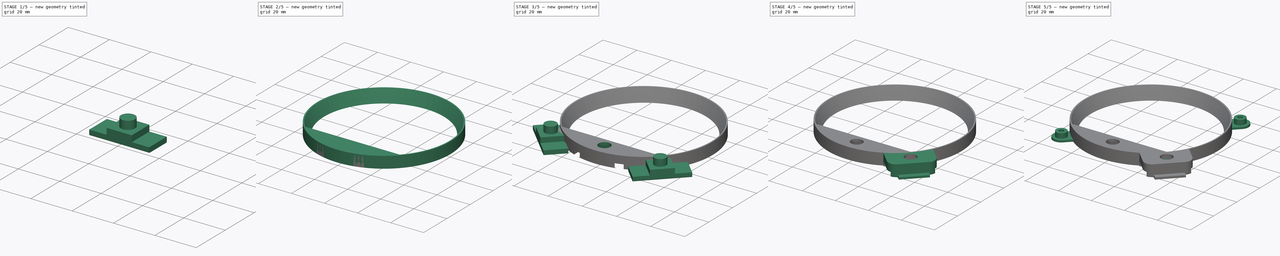
[diagram: build sequence overview — one tinted view per stage of 5, left to right]
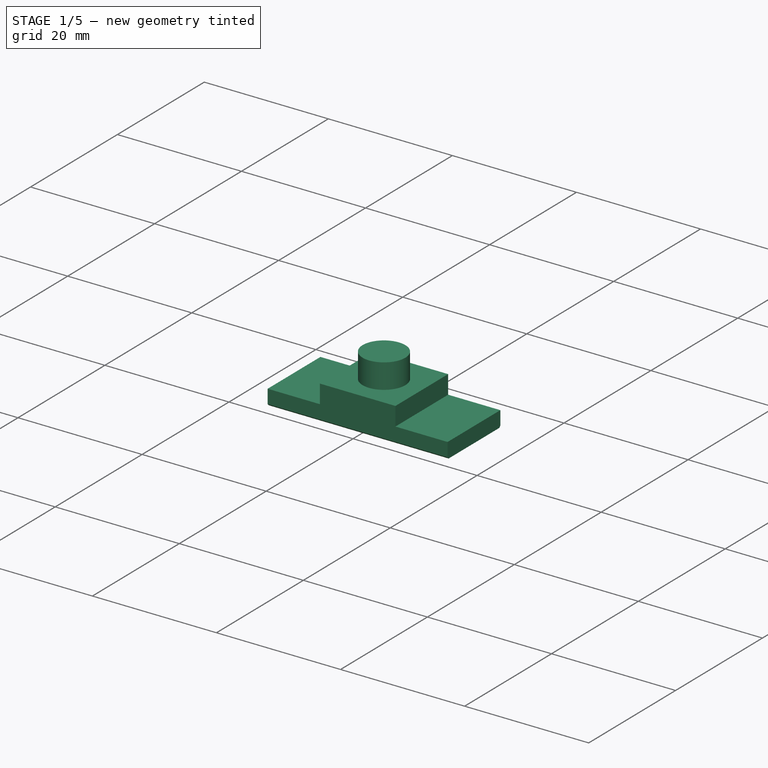
[diagram: stage 1 of 5 — iso view after this stage's code; geometry added in this stage tinted green]
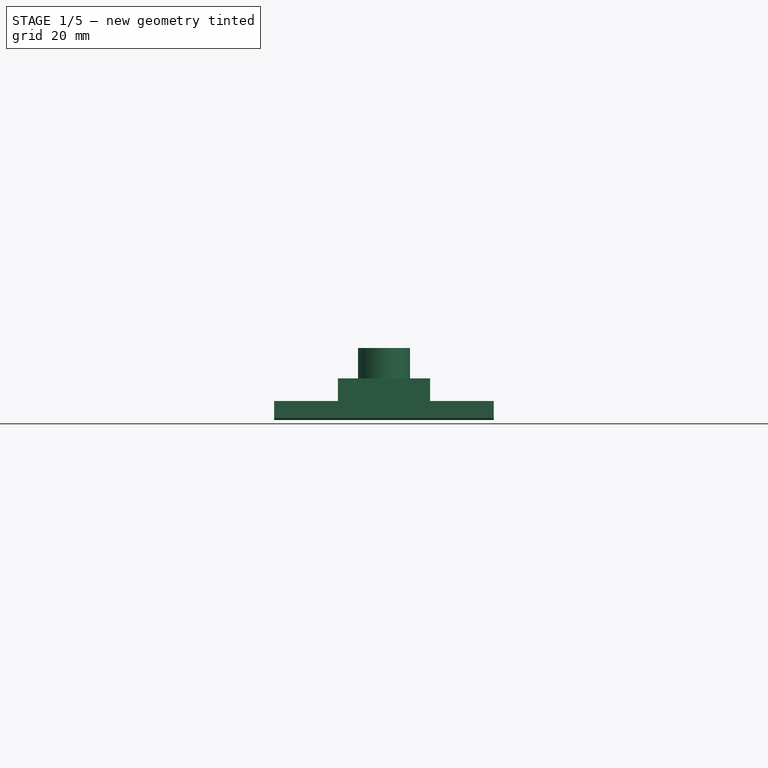
[diagram: stage 1 of 5 — front view after this stage's code; geometry added in this stage tinted green]
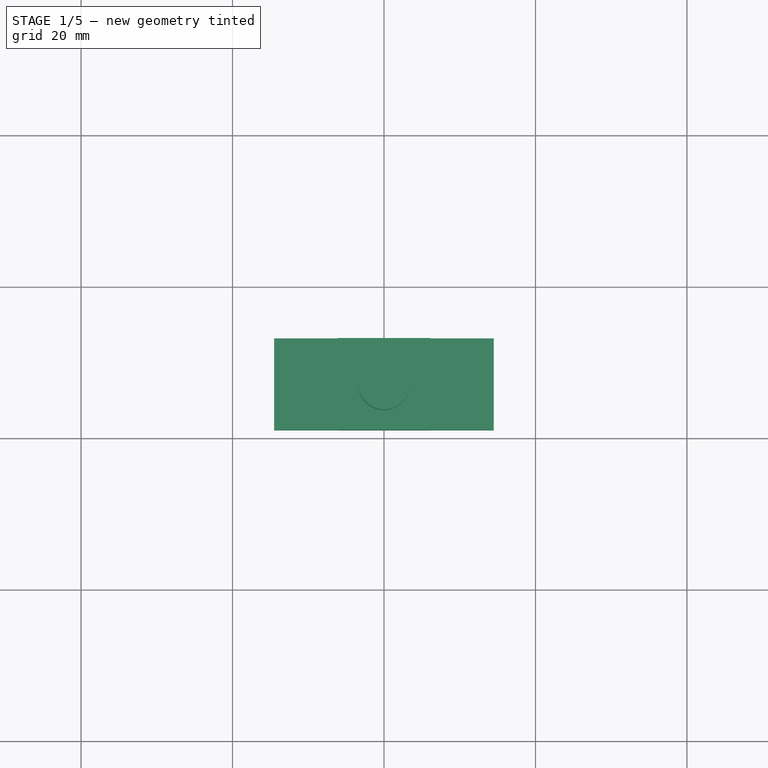
[diagram: stage 1 of 5 — top view after this stage's code; geometry added in this stage tinted green]
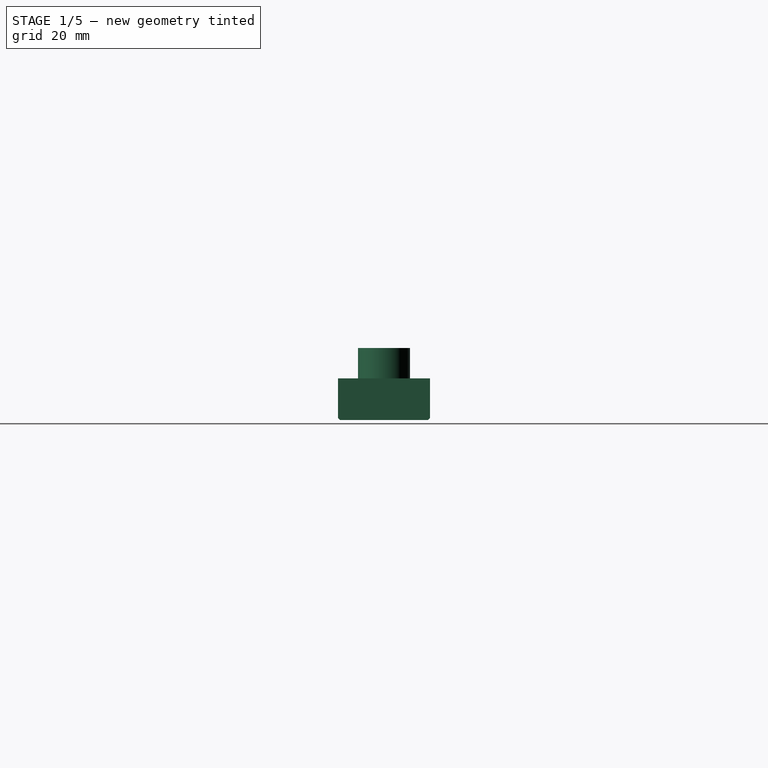
[diagram: stage 1 of 5 — right view after this stage's code; geometry added in this stage tinted green]
FCSTD DOCUMENT  (FreeCAD 0.16R6706 (Git))
Label: bezel_large
License: All rights reserved
LicenseURL: http://en.wikipedia.org/wiki/All_rights_reserved
objects: Sketcher::SketchObject×11, PartDesign::Pad×9, Part::FeaturePython×9, Part::Cut×6, PartDesign::Pocket×2, Part::Chamfer×2, Part::Compound×2, Part::Cone×1, Part::MultiFuse×1
note: 54 computed .brp shape members not serialized (recipe doc carries the construction recipe); baked Part::Feature solids carry a one-line shape summary decoded from their .brp

FEATURE [Sketcher::SketchObject] Sketch007  label="Sketch (enc wiring cutout)"
  sketch-geometry (7):
    g0: LineSegment [constr] StartX=0 StartY=0 StartZ=0 EndX=-32.08 EndY=-32.08 EndZ=0
    g1: LineSegment StartX=-38.0409 StartY=-17.5348 StartZ=0 EndX=-17.5348 EndY=-38.0409 EndZ=0
    g2: LineSegment StartX=-17.5348 StartY=-38.0409 StartZ=0 EndX=-26.1191 EndY=-46.6252 EndZ=0
    g3: LineSegment StartX=-26.1191 StartY=-46.6252 StartZ=0 EndX=-46.6252 EndY=-26.1191 EndZ=0
    g4: LineSegment StartX=-46.6252 StartY=-26.1191 StartZ=0 EndX=-38.0409 EndY=-17.5348 EndZ=0
    g5: LineSegment [constr] StartX=-46.6252 StartY=-26.1191 StartZ=0 EndX=-17.5348 EndY=-38.0409 EndZ=0
    g6: LineSegment [constr] StartX=-38.0409 StartY=-17.5348 StartZ=0 EndX=-26.1191 EndY=-46.6252 EndZ=0
  constraints (18):
    c: Coincident(g0,g-1)
    c: Angle(g-2,g0) = 2.35619
    c: Coincident(g1,g2)
    c: Coincident(g2,g3)
    c: Coincident(g3,g4)
    c: Coincident(g4,g1)
    c: Parallel(g4,g2)
    c: Parallel(g1,g3)
    c: Perpendicular(g4,g1)
    c: Symmetric(g1,g1,g0)
    c: Distance(g4) = 12.14
    c: Distance(g1) = 29
    c: Coincident(g5,g3)
    c: Coincident(g5,g1)
    c: Coincident(g6,g1)
    c: Coincident(g6,g2)
    c: PointOnObject(g0,g5)
    c: Distance(g0) = 45.368
FEATURE [PartDesign::Pad] Pad005  label="Pad (enc wiring cutout)"
  Length = 2.5
  Length2 = 100
  Sketch = -> Sketch007
  Type = 0
FEATURE [Part::Chamfer] Chamfer  label="Chamfer (encoder clip)"
  Base = -> Pad005
  Edges = 2 edges r=0.25: [Edge3,Edge9]
FEATURE [Sketcher::SketchObject] Sketch008  label="Sketch (encoder base cutout)"
  ExternalGeometry = -> [Pad005]
  Placement = pos=(0,0,2.5) rot=(0,0,1;0rad)
  Support = -> Chamfer [Face4]
  sketch-geometry (7):
    g0: LineSegment [constr] StartX=-46.6252 StartY=-26.1191 StartZ=0 EndX=-17.5348 EndY=-38.0409 EndZ=0
    g1: LineSegment [constr] StartX=-38.0409 StartY=-17.5348 StartZ=0 EndX=-26.1191 EndY=-46.6252 EndZ=0
    g2: LineSegment StartX=-32.0942 StartY=-23.4816 StartZ=0 EndX=-40.6784 EndY=-32.0659 EndZ=0
    g3: LineSegment StartX=-40.6784 StartY=-32.0659 StartZ=0 EndX=-32.0659 EndY=-40.6784 EndZ=0
    g4: LineSegment StartX=-32.0659 StartY=-40.6784 StartZ=0 EndX=-23.4816 EndY=-32.0942 EndZ=0
    g5: LineSegment StartX=-23.4816 StartY=-32.0942 StartZ=0 EndX=-32.0942 EndY=-23.4816 EndZ=0
    g6: Circle [constr] CenterX=-32.08 CenterY=-32.08 CenterZ=0 NormalX=0 NormalY=0 NormalZ=1 Radius=8.59843
  constraints (19):
    c: Coincident(g0,g-3)
    c: Coincident(g0,g-4)
    c: Coincident(g1,g-3)
    c: Coincident(g1,g-4)
    c: Coincident(g2,g3)
    c: Coincident(g3,g4)
    c: Coincident(g4,g5)
    c: Coincident(g5,g2)
    c: PointOnObject(g2,g6)
    c: PointOnObject(g3,g6)
    c: PointOnObject(g4,g6)
    c: PointOnObject(g5,g6)
    c: PointOnObject(g6,g0)
    c: PointOnObject(g6,g1)
    c: Equal(g-3,g2)
    c: Parallel(g-3,g2)
    c: Equal(g4,g2)
    c: Equal(g3,g5)
    c: Distance(g3) = 12.18
FEATURE [PartDesign::Pad] Pad006  label="Pad (encoder base cutout)"
  Length = 3
  Length2 = 100
  Sketch = -> Sketch008
  Type = 0
FEATURE [Sketcher::SketchObject] Sketch009  label="Sketch (enc shaft cutout)"
  ExternalGeometry = -> [Pad006]
  Placement = pos=(0,0,5.5) rot=(0,0,1;0rad)
  Support = -> Pad006 [Face1]
  sketch-geometry (3):
    g0: Circle CenterX=-32.08 CenterY=-32.08 CenterZ=0 NormalX=0 NormalY=0 NormalZ=1 Radius=3.44
    g1: LineSegment [constr] StartX=-40.6784 StartY=-32.0659 StartZ=0 EndX=-23.4816 EndY=-32.0942 EndZ=0
    g2: LineSegment [constr] StartX=-32.0659 StartY=-40.6784 StartZ=0 EndX=-32.0942 EndY=-23.4816 EndZ=0
  constraints (7):
    c: Radius(g0) = 3.44
    c: Coincident(g1,g-3)
    c: Coincident(g1,g-4)
    c: Coincident(g2,g-4)
    c: Coincident(g2,g-3)
    c: PointOnObject(g0,g2)
    c: PointOnObject(g0,g1)
FEATURE [PartDesign::Pad] Pad007  label="Pad (enc shaft cutout)"
  Length = 4
  Length2 = 100
  Sketch = -> Sketch009
  Type = 0
FEATURE [Part::FeaturePython] Clone007  label="Clone of Enc Cutout Final"  # Draft clone (typed FeaturePython)
  Objects = -> [Pad007]
  Scale = (1,1,1)
FEATURE [Part::FeaturePython] Clone011  label="Clone (enc cutout attitude)001"  # Draft clone (typed FeaturePython)
  Objects = -> [Clone007]
  Placement = pos=(0,12.5,0) rot=(0,0,1;0.785398rad)
  Scale = (1,1,1)
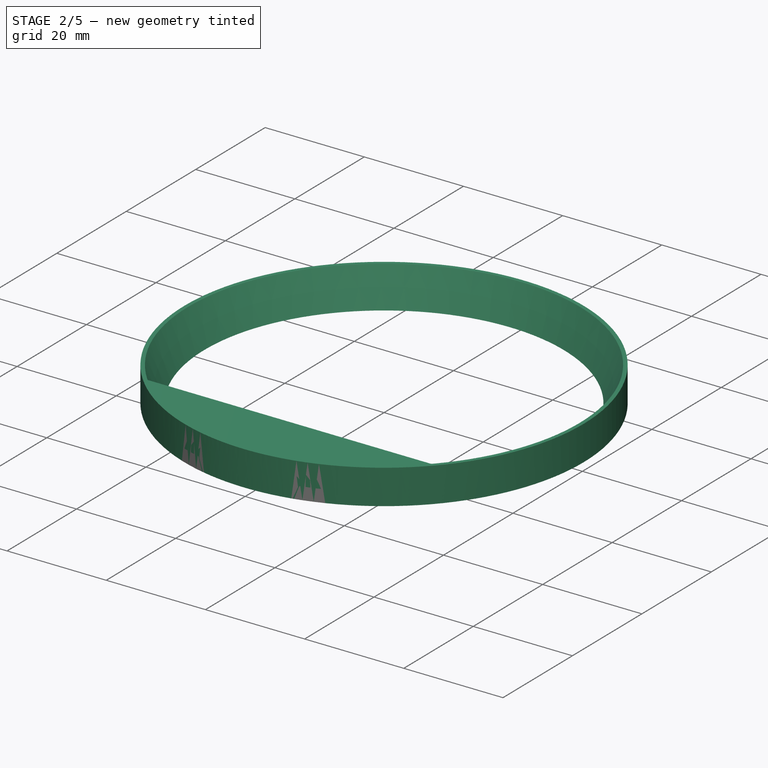
[diagram: stage 2 of 5 — iso view after this stage's code; geometry added in this stage tinted green]
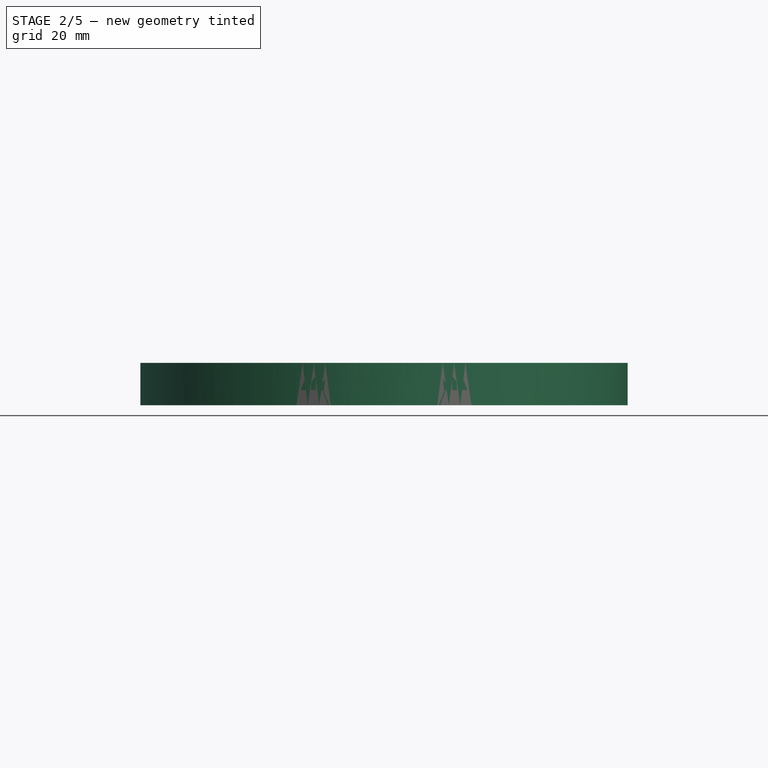
[diagram: stage 2 of 5 — front view after this stage's code; geometry added in this stage tinted green]
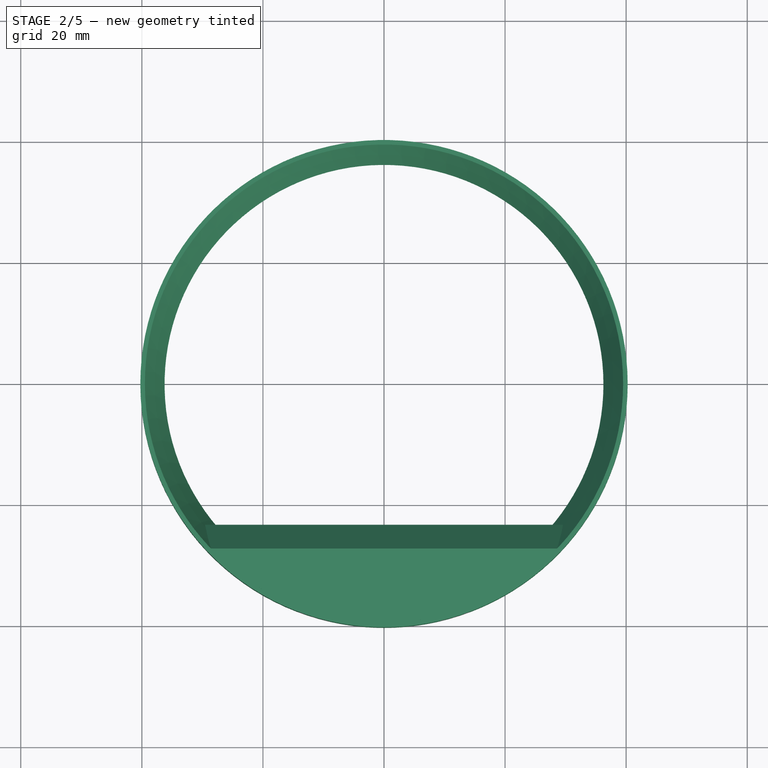
[diagram: stage 2 of 5 — top view after this stage's code; geometry added in this stage tinted green]
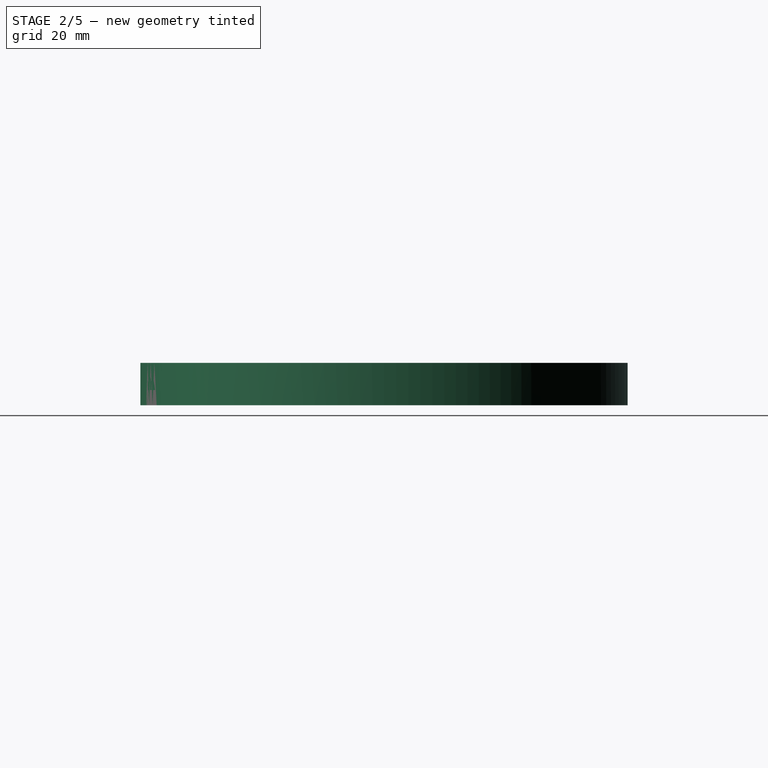
[diagram: stage 2 of 5 — right view after this stage's code; geometry added in this stage tinted green]
FEATURE [Sketcher::SketchObject] Sketch004  label="Sketch (ring)"
  sketch-geometry (2):
    g0: Circle CenterX=0 CenterY=0 CenterZ=0 NormalX=0 NormalY=0 NormalZ=1 Radius=36.25
    g1: Circle CenterX=0 CenterY=0 CenterZ=0 NormalX=0 NormalY=0 NormalZ=1 Radius=40.25
  constraints (4):
    c: Coincident(g0,g-1)
    c: Radius(g0) = 36.25
    c: Coincident(g1,g-1)
    c: Radius(g1) = 40.25
FEATURE [PartDesign::Pad] Pad002  label="Pad (ring)"
  Length = 7
  Length2 = 100
  Sketch = -> Sketch004
  Type = 0
FEATURE [Part::Cone] Cone
  Angle = 360
  Height = 7
  Radius1 = 36.25
  Radius2 = 39.5
FEATURE [Part::Cut] Cut  label="Ring Chamfered"
  Base = -> Pad002
  Tool = -> Cone
FEATURE [Sketcher::SketchObject] Sketch011  label="Sketch (attitude enc mount)"
  sketch-geometry (3):
    g0: ArcOfCircle CenterX=0 CenterY=0 CenterZ=0 NormalX=0 NormalY=0 NormalZ=1 Radius=40.25 StartAngle=3.75743 EndAngle=5.66735
    g1: LineSegment StartX=-32.8557 StartY=-23.25 StartZ=0 EndX=32.8557 EndY=-23.25 EndZ=0
    g2: LineSegment StartX=0 StartY=-23.25 StartZ=0 EndX=0 EndY=-40.25 EndZ=0
  constraints (10):
    c: Coincident(g0,g-1)
    c: Coincident(g1,g0)
    c: Coincident(g1,g0)
    c: Horizontal(g1)
    c: Radius(g0) = 40.25
    c: Vertical(g2)
    c: PointOnObject(g2,g1)
    c: PointOnObject(g2,g0)
    c: DistanceY(g2,g2) = 17
    c: Symmetric(g1,g1,g2)
FEATURE [PartDesign::Pad] Pad009  label="Pad (attitude enc mount)"
  Length = 7
  Length2 = 100
  Sketch = -> Sketch011
  Type = 0
FEATURE [Part::Chamfer] Chamfer001  label="Chamfer (attitude enc mount)"
  Base = -> Pad009
  Edges = 1 edges r=4: [Edge6]
FEATURE [Part::FeaturePython] Clone013  label="Clone (enc cutout attitude)"  # Draft clone (typed FeaturePython)
  Objects = -> [Clone011]
  Placement = pos=(0,12.5,0) rot=(0,0,1;0.785398rad)
  Scale = (1,1,1)
FEATURE [Part::Cut] Cut004  label="Cut (enc cutout attitude)"
  Base = -> Cut
  Tool = -> Clone013
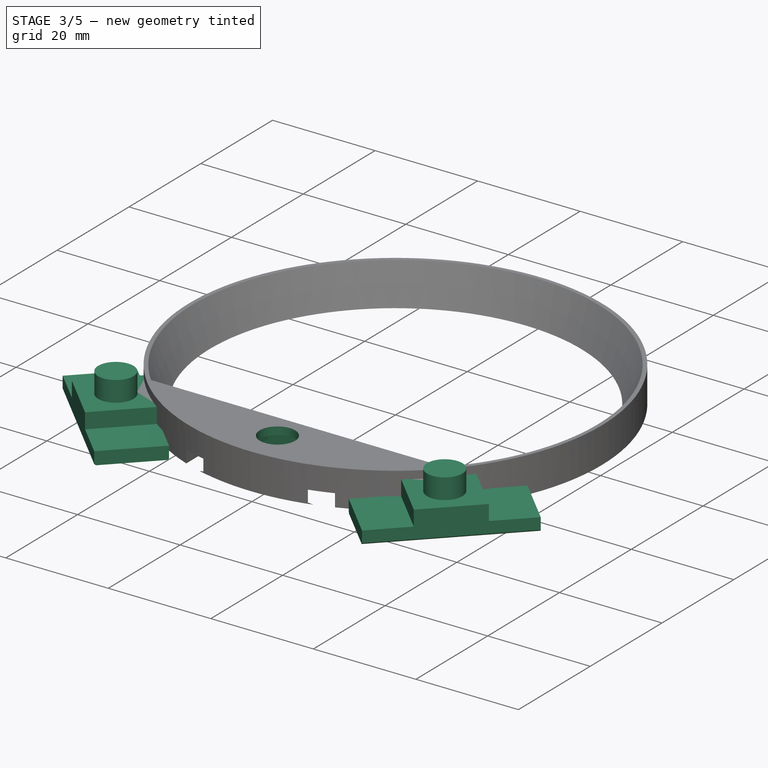
[diagram: stage 3 of 5 — iso view after this stage's code; geometry added in this stage tinted green]
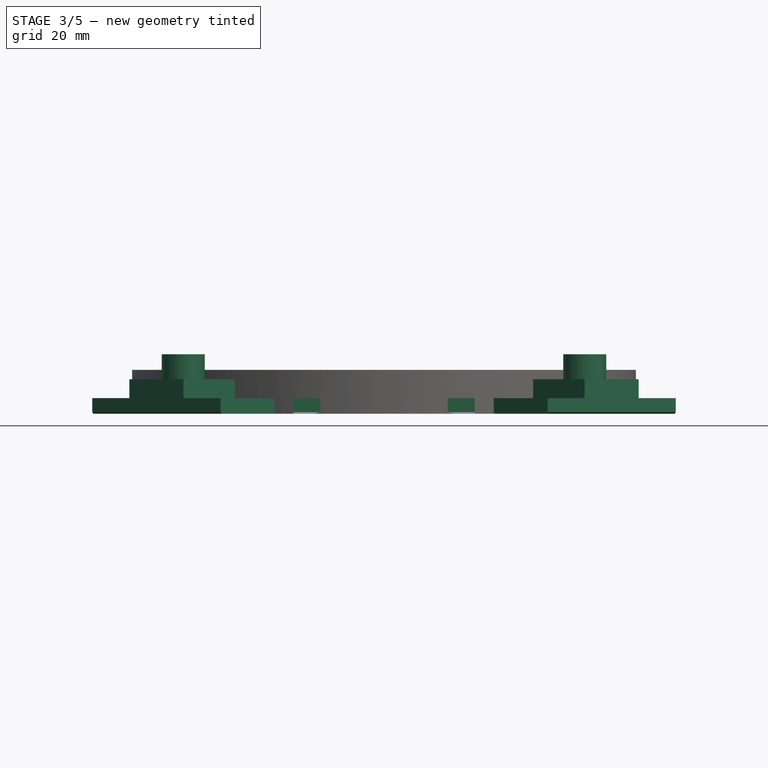
[diagram: stage 3 of 5 — front view after this stage's code; geometry added in this stage tinted green]
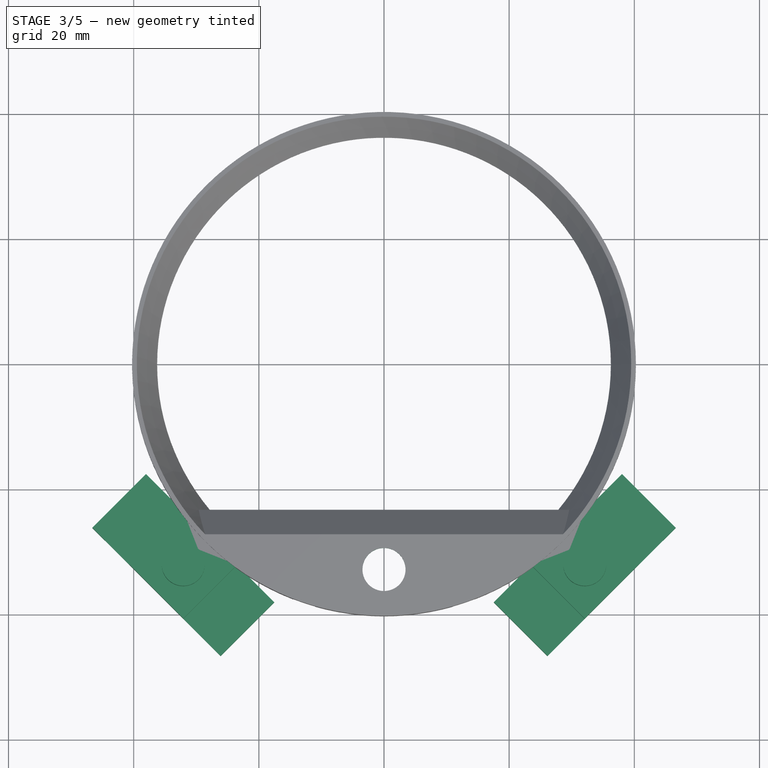
[diagram: stage 3 of 5 — top view after this stage's code; geometry added in this stage tinted green]
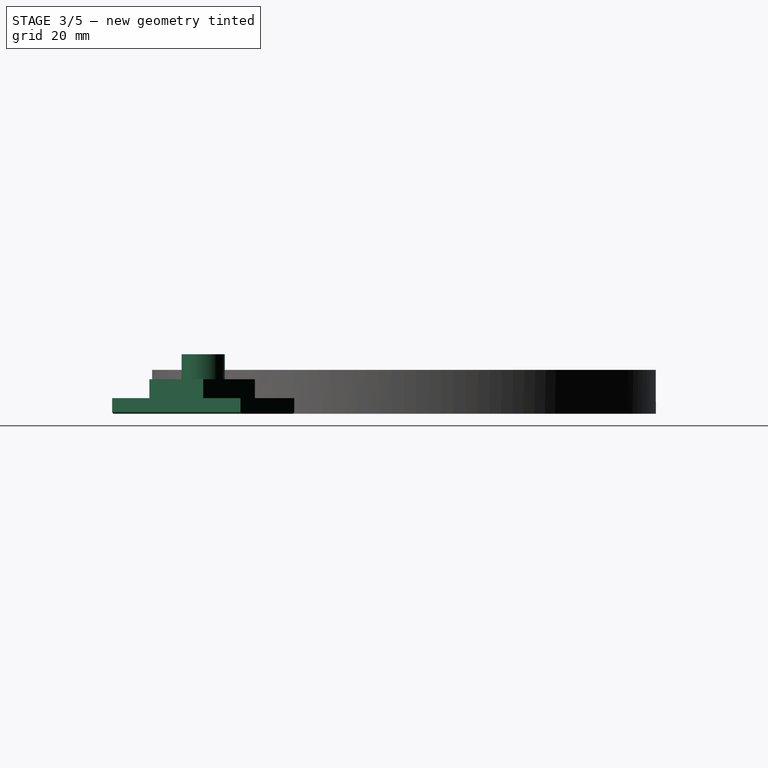
[diagram: stage 3 of 5 — right view after this stage's code; geometry added in this stage tinted green]
FEATURE [Part::FeaturePython] Clone009  label="Close (enc cutout bottom right)"  # Draft clone (typed FeaturePython)
  Objects = -> [Clone007]
  Placement = pos=(0,0,0) rot=(0,0,1;1.5708rad)
  Scale = (1,1,1)
FEATURE [Part::FeaturePython] Clone010  label="Clone (enc cutout bottom left)"  # Draft clone (typed FeaturePython)
  Objects = -> [Clone007]
  Scale = (1,1,1)
FEATURE [Part::Compound] Compound001  label="Compound (attitude mount)"
  Links = -> [Chamfer001]
FEATURE [Part::Cut] Cut003  label="Cut (attitude mount)"
  Base = -> Compound001
  Tool = -> Clone011
FEATURE [Part::Cut] Cut005  label="Cut (attitude ring)"
  Base = -> Cut004
  Tool = -> Cut003
FEATURE [Part::MultiFuse] Fusion  label="Fusion (attitude bezel)"
  Shapes = -> [Cut003,Cut005]
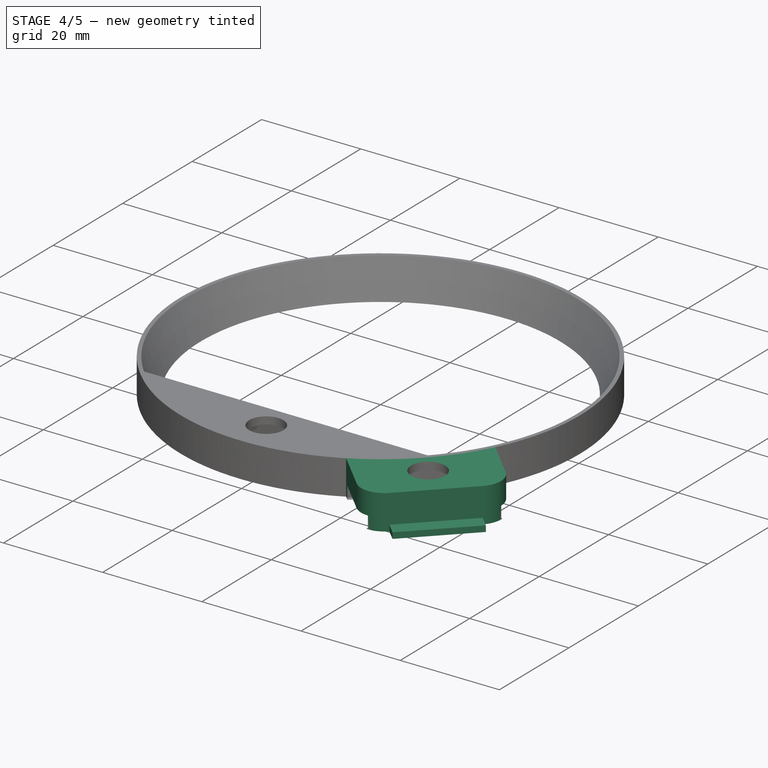
[diagram: stage 4 of 5 — iso view after this stage's code; geometry added in this stage tinted green]
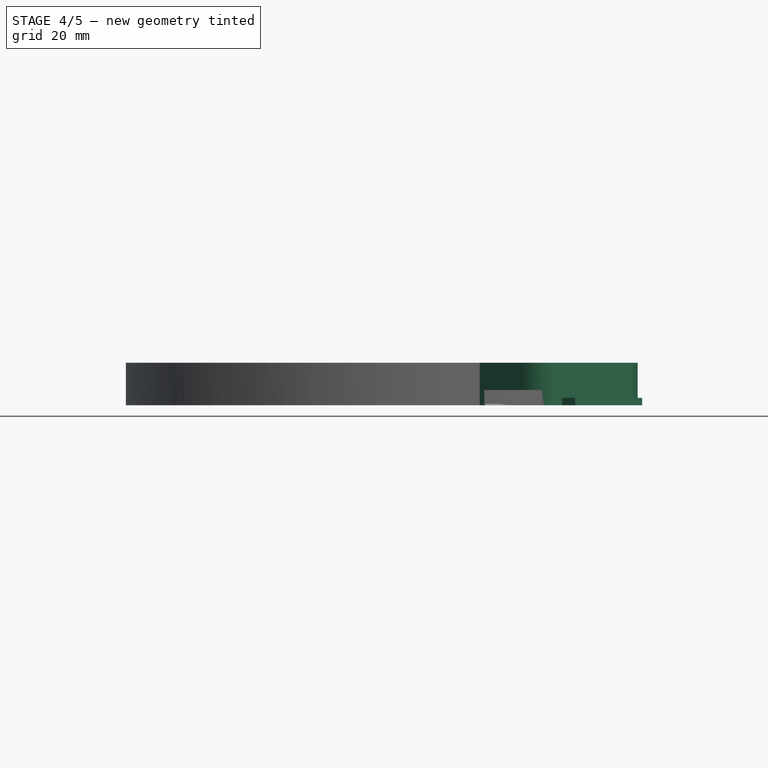
[diagram: stage 4 of 5 — front view after this stage's code; geometry added in this stage tinted green]
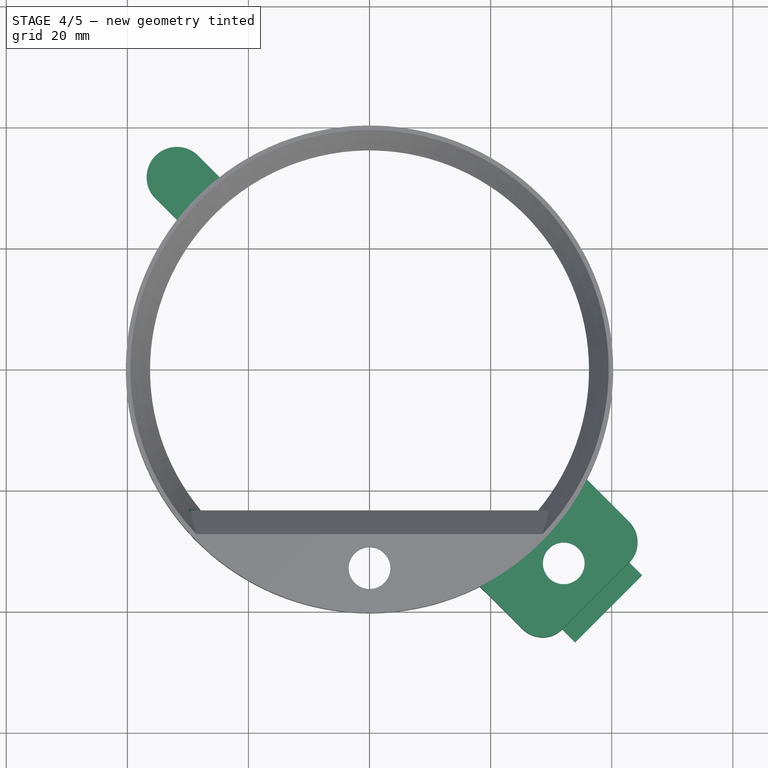
[diagram: stage 4 of 5 — top view after this stage's code; geometry added in this stage tinted green]
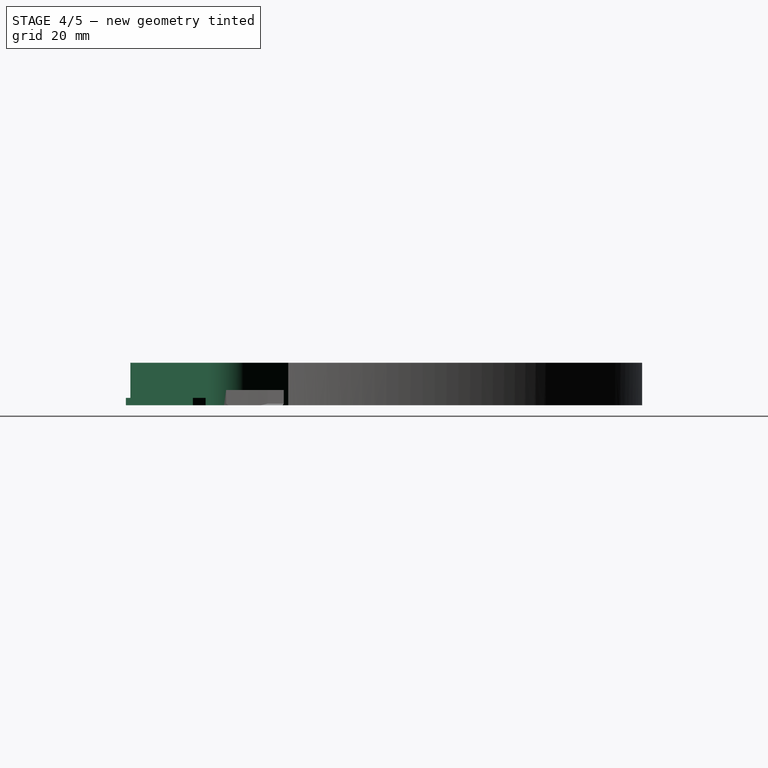
[diagram: stage 4 of 5 — right view after this stage's code; geometry added in this stage tinted green]
FEATURE [Sketcher::SketchObject] Sketch  label="Sketch (tab base)"
  sketch-geometry (6):
    g0: LineSegment [constr] StartX=0 StartY=0 StartZ=0 EndX=-31.8198 EndY=31.8198 EndZ=0
    g1: ArcOfCircle CenterX=-31.8198 CenterY=31.8198 CenterZ=0 NormalX=0 NormalY=0 NormalZ=1 Radius=5 StartAngle=0.785398 EndAngle=3.92699
    g2: LineSegment [constr] StartX=-28.2843 StartY=35.3553 StartZ=0 EndX=-35.3553 EndY=28.2843 EndZ=0
    g3: LineSegment StartX=-28.2843 StartY=35.3553 StartZ=0 EndX=-24.7051 EndY=31.7761 EndZ=0
    g4: LineSegment StartX=-31.7761 StartY=24.7051 StartZ=0 EndX=-35.3553 EndY=28.2843 EndZ=0
    g5: ArcOfCircle CenterX=0 CenterY=0 CenterZ=0 NormalX=0 NormalY=0 NormalZ=1 Radius=40.25 StartAngle=2.23165 EndAngle=2.48074
  constraints (17):
    c: Coincident(g0,g-1)
    c: Coincident(g1,g0)
    c: Angle(g-2,g0) = 0.785398
    c: Distance(g0) = 45
    c: Coincident(g2,g1)
    c: Coincident(g2,g1)
    c: PointOnObject(g0,g2)
    c: Perpendicular(g2,g0)
    c: Coincident(g3,g1)
    c: Coincident(g4,g1)
    c: Equal(g3,g4)
    c: Coincident(g5,g-1)
    c: Coincident(g5,g3)
    c: Radius(g5) = 40.25
    c: Coincident(g4,g5)
    c: Parallel(g3,g0)
    c: Radius(g1) = 5
FEATURE [PartDesign::Pad] Pad  label="Pad (tab base)"
  Length = 1.2
  Length2 = 100
  Sketch = -> Sketch
  Type = 0
FEATURE [Sketcher::SketchObject] Sketch006  label="Sketch (encoder tab)"
  expr: Constraints[16] = 9.35 / 2
  sketch-geometry (8):
    g0: ArcOfCircle CenterX=0 CenterY=0 CenterZ=0 NormalX=0 NormalY=0 NormalZ=1 Radius=40.25 StartAngle=3.61121 EndAngle=4.24277
    g1: LineSegment [constr] StartX=0 StartY=0 StartZ=0 EndX=-28.461 EndY=-28.461 EndZ=0
    g2: LineSegment StartX=-35.8926 StartY=-18.2149 StartZ=0 EndX=-42.91 EndY=-25.2323 EndZ=0
    g3: LineSegment StartX=-18.2149 StartY=-35.8926 StartZ=0 EndX=-25.2323 EndY=-42.91 EndZ=0
    g4: LineSegment StartX=-42.91 StartY=-31.8437 StartZ=0 EndX=-31.8437 EndY=-42.91 EndZ=0
    g5: ArcOfCircle CenterX=-39.6042 CenterY=-28.538 CenterZ=0 NormalX=0 NormalY=0 NormalZ=1 Radius=4.675 StartAngle=2.35619 EndAngle=3.92699
    g6: ArcOfCircle CenterX=-28.538 CenterY=-39.6042 CenterZ=0 NormalX=0 NormalY=0 NormalZ=1 Radius=4.675 StartAngle=3.92699 EndAngle=5.49779
    g7: LineSegment StartX=-42.3627 StartY=-24.685 StartZ=0 EndX=-24.685 EndY=-42.3627 EndZ=0
  constraints (21):
    c: Coincident(g0,g-1)
    c: Coincident(g1,g-1)
    c: PointOnObject(g1,g0)
    c: Symmetric(g0,g0,g1)
    c: Coincident(g3,g0)
    c: Coincident(g2,g0)
    c: Parallel(g2,g3)
    c: Equal(g2,g3)
    c: Perpendicular(g4,g2)
    c: Angle(g-2,g1) = 2.35619
    c: Distance(g1) = 40.25
    c: Tangent(g2,g5) = -1.5708
    c: Tangent(g4,g5) = -1.5708
    c: Tangent(g3,g6) = 1.5708
    c: Tangent(g4,g6) = -1.5708
    c: Perpendicular(g1,g4)
    c: Radius(g5) = 4.675
    c: PointOnObject(g7,g2)
    c: PointOnObject(g7,g3)
    c: Perpendicular(g2,g7)
    c: Distance(g7) = 25
FEATURE [PartDesign::Pad] Pad004  label="Pad (encoder tab)"
  Length = 7
  Length2 = 100
  Sketch = -> Sketch006
  Type = 0
FEATURE [Part::Cut] Cut001  label="Cut (encoder tab)"
  Base = -> Pad004
  Tool = -> Pad007
FEATURE [Sketcher::SketchObject] Sketch010  label="Sketch (encoder mount tab wing)"
  ExternalGeometry = -> [Cut001]
  Placement = pos=(-37.3768,-37.3768,0) rot=(0.862856,-0.357407,-0.357407;1.71777rad)
  Support = -> Cut001 [Face6]
  sketch-geometry (4):
    g0: LineSegment StartX=-7.825 StartY=0 StartZ=0 EndX=7.825 EndY=0 EndZ=0
    g1: LineSegment StartX=7.825 StartY=0 StartZ=0 EndX=7.825 EndY=1.2 EndZ=0
    g2: LineSegment StartX=7.825 StartY=1.2 StartZ=0 EndX=-7.825 EndY=1.2 EndZ=0
    g3: LineSegment StartX=-7.825 StartY=1.2 StartZ=0 EndX=-7.825 EndY=0 EndZ=0
  constraints (12):
    c: Coincident(g0,g1)
    c: Coincident(g1,g2)
    c: Coincident(g2,g3)
    c: Coincident(g3,g0)
    c: Horizontal(g0)
    c: Horizontal(g2)
    c: Vertical(g1)
    c: Vertical(g3)
    c: PointOnObject(g0,g-1)
    c: Distance(g3) = 1.2
    c: Coincident(g0,g-3)
    c: Coincident(g0,g-4)
FEATURE [PartDesign::Pad] Pad008  label="Pad (encoder mount tab wing)"
  Length = 3
  Length2 = 100
  Sketch = -> Sketch010
  Type = 0
FEATURE [Part::FeaturePython] Clone008  label="Clone (enc tab bottom right)"  # Draft clone (typed FeaturePython)
  Objects = -> [Pad008]
  Placement = pos=(0,0,0) rot=(0,0,1;1.5708rad)
  Scale = (1,1,1)
FEATURE [Part::Compound] Compound  label="Compound (enc tab dual)"
  Links = -> [Clone009,Clone010]
FEATURE [Part::Cut] Cut002  label="Cut (enc cutout dual)"
  Base = -> Cut
  Tool = -> Compound
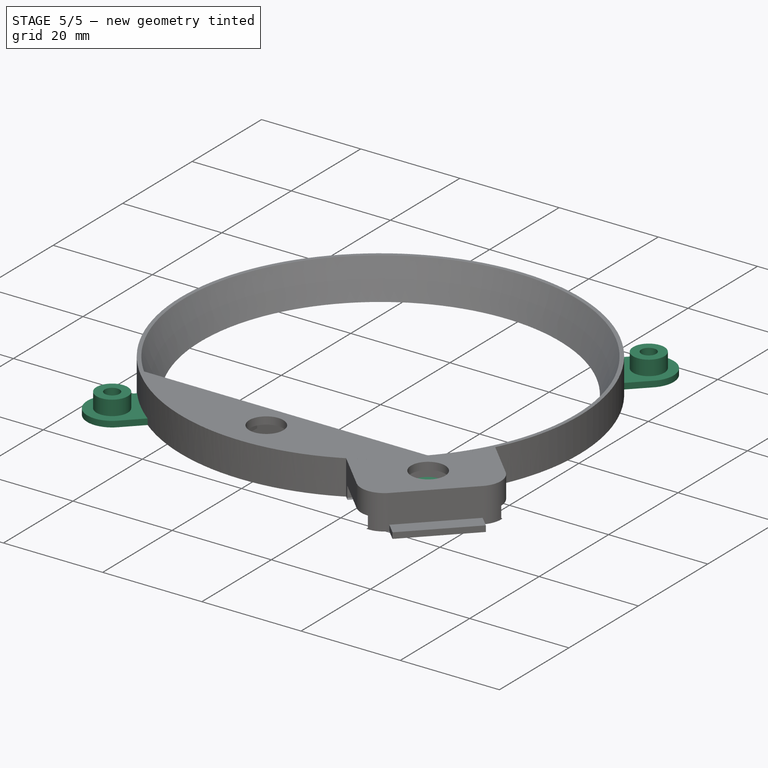
[diagram: stage 5 of 5 — iso view after this stage's code; geometry added in this stage tinted green]
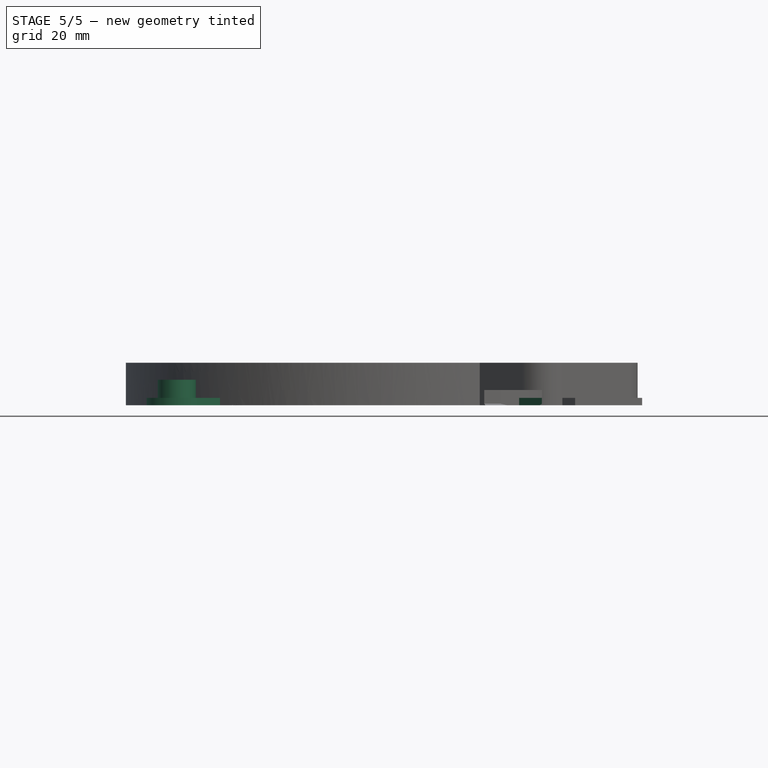
[diagram: stage 5 of 5 — front view after this stage's code; geometry added in this stage tinted green]
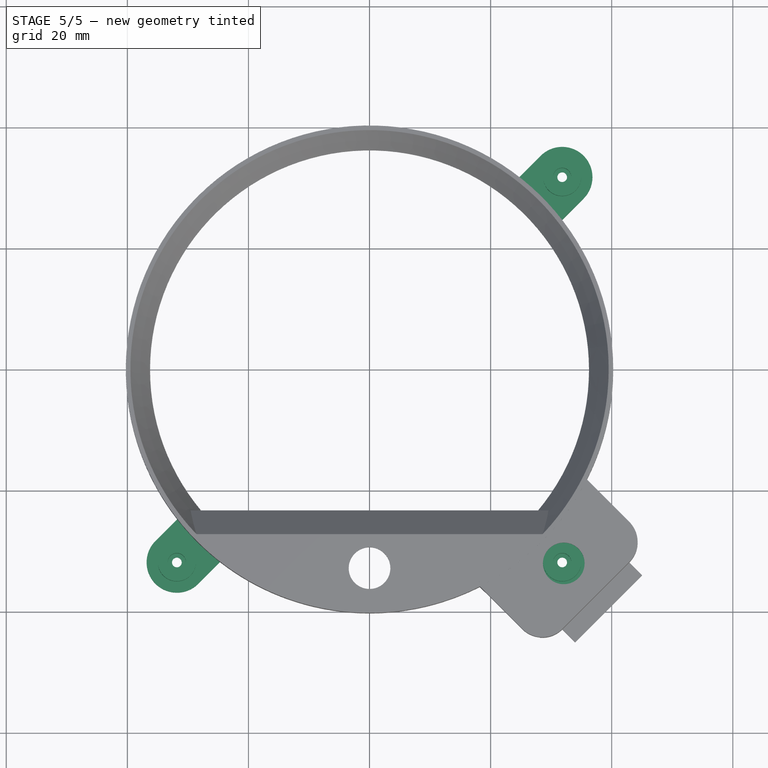
[diagram: stage 5 of 5 — top view after this stage's code; geometry added in this stage tinted green]
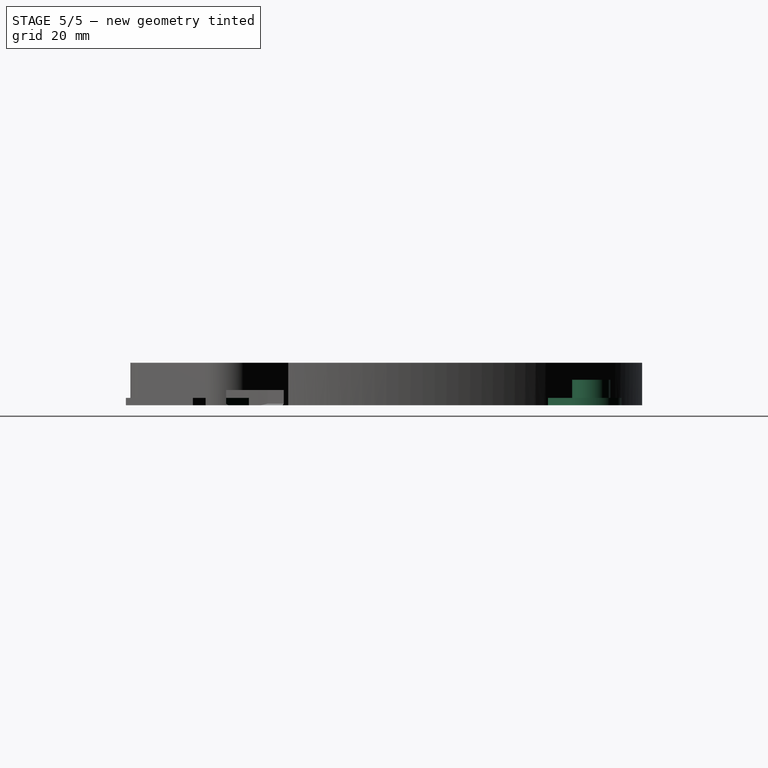
[diagram: stage 5 of 5 — right view after this stage's code; geometry added in this stage tinted green]
FEATURE [Sketcher::SketchObject] Sketch001  label="Sketch (tab peg)"
  ExternalGeometry = -> [Pad]
  Placement = pos=(0,0,1.2) rot=(0,0,1;0rad)
  Support = -> Pad [Face6]
  sketch-geometry (1):
    g0: Circle CenterX=-31.8198 CenterY=31.8198 CenterZ=0 NormalX=0 NormalY=0 NormalZ=1 Radius=3.15
  constraints (2):
    c: Coincident(g0,g-3)
    c: Radius(g0) = 3.15
FEATURE [PartDesign::Pad] Pad001  label="Pad (tab peg)"
  Length = 3
  Length2 = 100
  Sketch = -> Sketch001
  Type = 0
FEATURE [Sketcher::SketchObject] Sketch002  label="Sketch (tab hole)"
  ExternalGeometry = -> [Pad001]
  Placement = pos=(0,0,4.2) rot=(0,0,1;0rad)
  Support = -> Pad001 [Face8]
  sketch-geometry (1):
    g0: Circle CenterX=-31.8198 CenterY=31.8198 CenterZ=0 NormalX=0 NormalY=0 NormalZ=1 Radius=0.8
  constraints (2):
    c: Coincident(g0,g-3)
    c: Radius(g0) = 0.8
FEATURE [PartDesign::Pocket] Pocket  label="Pocket (tab hole)"
  Length = 5
  Sketch = -> Sketch002
  Type = 1
FEATURE [Sketcher::SketchObject] Sketch003  label="Sketch (tab threads)"
  ExternalGeometry = -> [Pocket]
  Placement = pos=(0,0,4.2) rot=(0,0,1;0rad)
  Support = -> Pocket [Face9]
  sketch-geometry (1):
    g0: Circle CenterX=-31.8198 CenterY=31.8198 CenterZ=0 NormalX=0 NormalY=0 NormalZ=1 Radius=1.5
  constraints (2):
    c: Coincident(g0,g-3)
    c: Radius(g0) = 1.5
FEATURE [PartDesign::Pocket] Pocket001  label="Pocket (tab threads)"
  Length = 3.5
  Sketch = -> Sketch003
  Type = 0
FEATURE [Part::FeaturePython] Clone  label="Tab (bottom left)"  # Draft clone (typed FeaturePython)
  Objects = -> [Pocket001]
  Placement = pos=(0,0,0) rot=(0,0,1;1.5708rad)
  Scale = (1,1,1)
FEATURE [Part::FeaturePython] Clone001  label="Tab (bottom right)"  # Draft clone (typed FeaturePython)
  Objects = -> [Pocket001]
  Placement = pos=(0,0,0) rot=(0,0,1;3.14159rad)
  Scale = (1,1,1)
FEATURE [Part::FeaturePython] Clone002  label="Tab (top right)"  # Draft clone (typed FeaturePython)
  Objects = -> [Pocket001]
  Placement = pos=(0,0,0) rot=(0,0,-1;1.5708rad)
  Scale = (1,1,1)
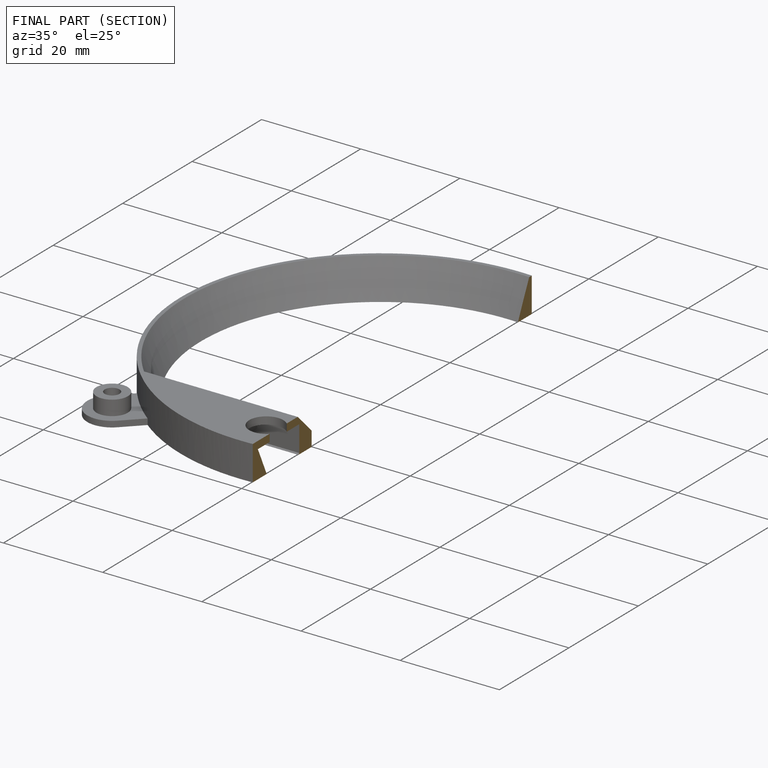
[diagram: finished part — half-section view (interior)]
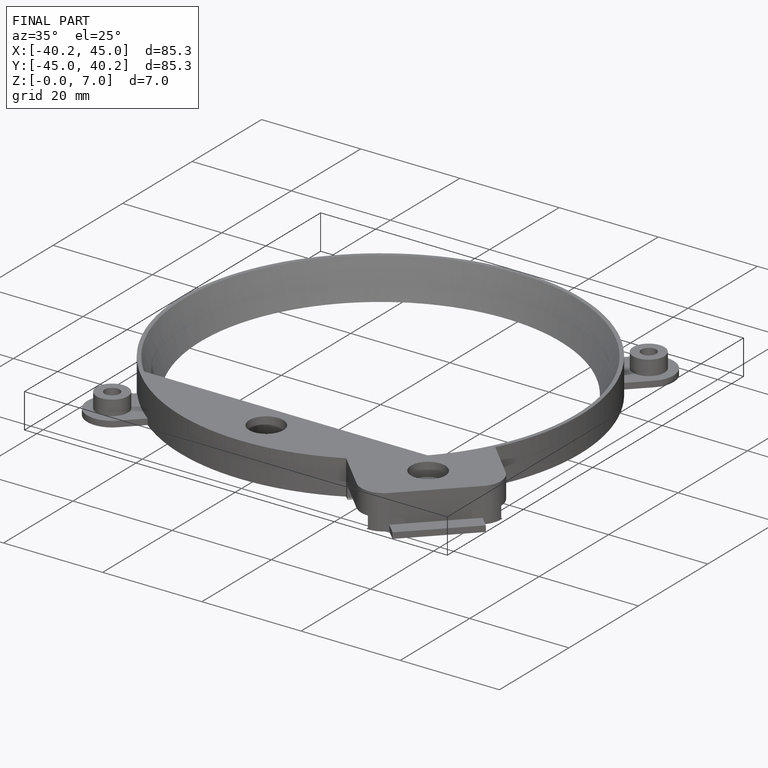
[diagram: finished part — iso view with bounding-box wireframe]
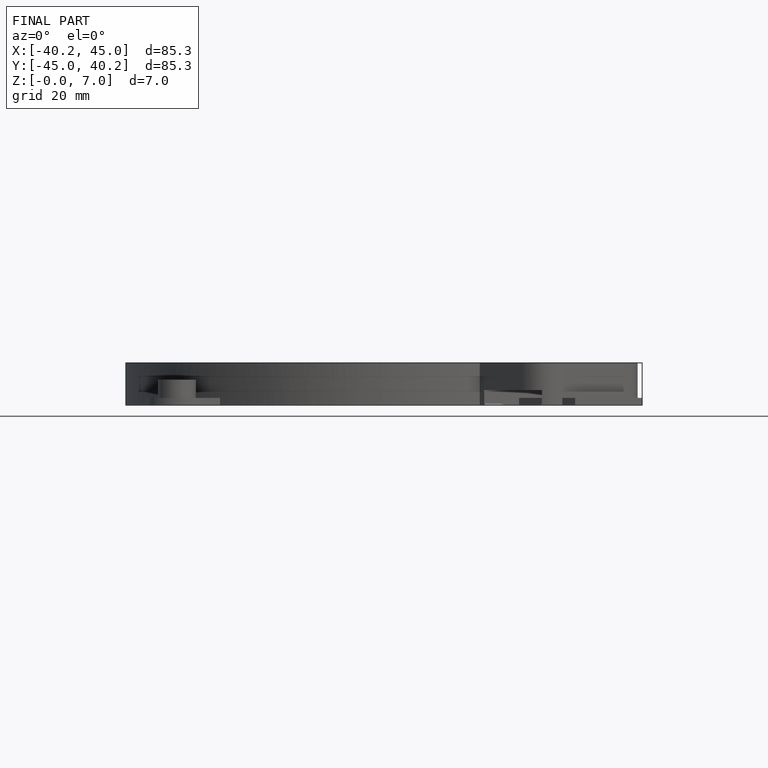
[diagram: finished part — front view with bounding-box wireframe]
